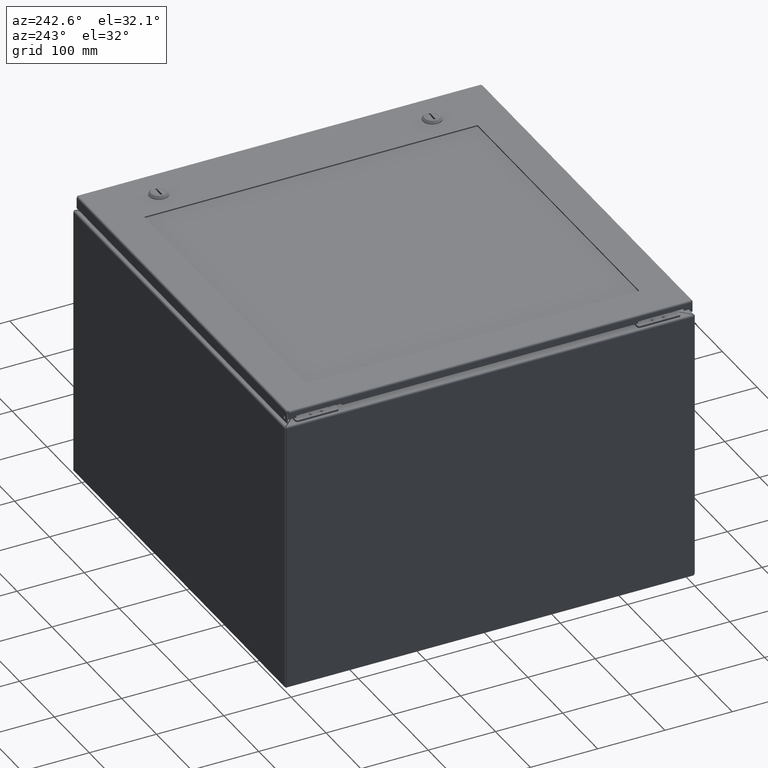
[diagram: clean part render]
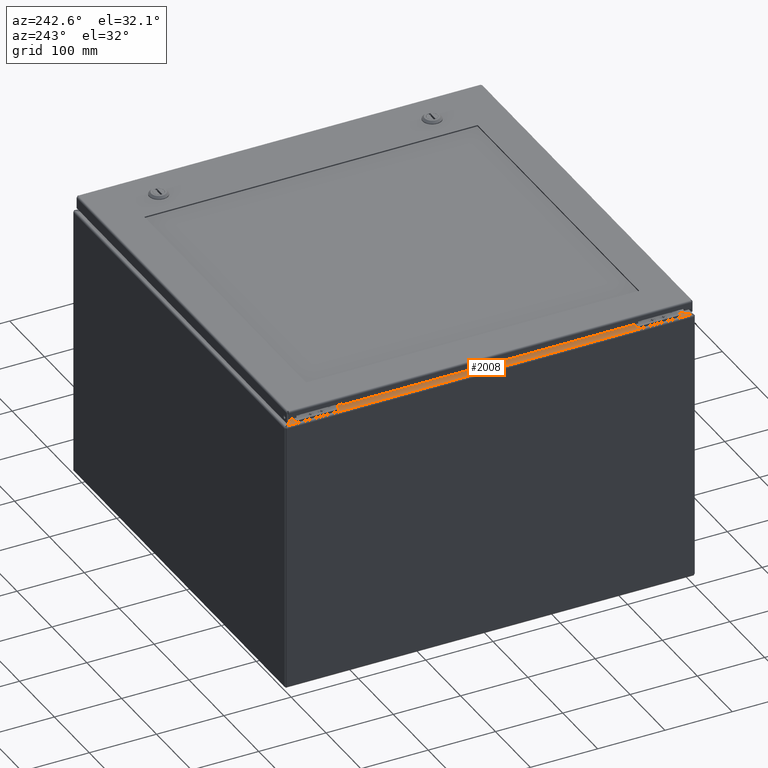
[diagram: same view with one face highlighted and labeled with its STEP entity id]
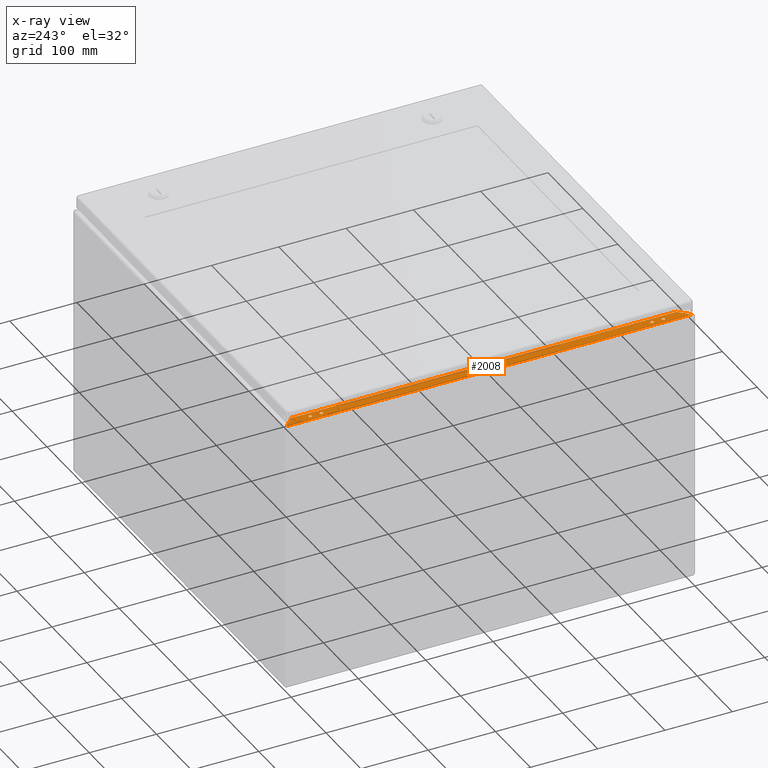
[diagram: x-ray of the same camera — body ghosted, the highlighted face saturated]
A machine part, auxiliary view. The second image highlights one B-rep face of the part: STEP entity #2008.
The next image is the same camera in x-ray: the body ghosted, the highlighted face saturated — about 0% of this face is hidden behind the body in this view.
In plain terms, the highlighted planar face has unit normal (0, -0, -1).
Its self-contained STEP definition (entity closure, byte-faithful):
#247=CARTESIAN_POINT('',(22.349999999999998,0.399999999999981,15.999999999999970));
#248=VERTEX_POINT('',#247);
#249=CARTESIAN_POINT('',(22.255999999999997,0.399999999999981,15.999999999999970));
#250=DIRECTION('',(0.0,0.0,-1.0));
#251=DIRECTION('',(-1.0,0.0,0.0));
#252=AXIS2_PLACEMENT_3D('',#249,#250,#251);
#253=CIRCLE('',#252,0.094000000000000);
#254=EDGE_CURVE('',#248,#248,#253,.T.);
#275=CARTESIAN_POINT('',(21.689999999999998,0.399999999999981,15.999999999999970));
#276=VERTEX_POINT('',#275);
#277=CARTESIAN_POINT('',(21.595999999999997,0.399999999999981,15.999999999999970));
#278=DIRECTION('',(0.0,0.0,-1.0));
#279=DIRECTION('',(-1.0,0.0,0.0));
#280=AXIS2_PLACEMENT_3D('',#277,#278,#279);
#281=CIRCLE('',#280,0.094000000000000);
#282=EDGE_CURVE('',#276,#276,#281,.T.);
#303=CARTESIAN_POINT('',(2.349999999999210,0.399999999999981,15.999999999999970));
#304=VERTEX_POINT('',#303);
#305=CARTESIAN_POINT('',(2.255999999999210,0.399999999999981,15.999999999999970));
#306=DIRECTION('',(0.0,0.0,-1.0));
#307=DIRECTION('',(-1.0,0.0,0.0));
#308=AXIS2_PLACEMENT_3D('',#305,#306,#307);
#309=CIRCLE('',#308,0.094000000000000);
#310=EDGE_CURVE('',#304,#304,#309,.T.);
#331=CARTESIAN_POINT('',(1.689999999999210,0.399999999999981,15.999999999999970));
#332=VERTEX_POINT('',#331);
#333=CARTESIAN_POINT('',(1.595999999999210,0.399999999999981,15.999999999999970));
#334=DIRECTION('',(0.0,0.0,-1.0));
#335=DIRECTION('',(-1.0,0.0,0.0));
#336=AXIS2_PLACEMENT_3D('',#333,#334,#335);
#337=CIRCLE('',#336,0.094000000000000);
#338=EDGE_CURVE('',#332,#332,#337,.T.);
#591=CARTESIAN_POINT('',(0.065093184459813,0.105249999999991,16.000000000000007));
#592=VERTEX_POINT('',#591);
#626=CARTESIAN_POINT('',(23.786906815539659,0.105249999999991,16.000000000000007));
#627=VERTEX_POINT('',#626);
#778=CARTESIAN_POINT('',(23.184906815539652,0.707249999999997,16.000000000000028));
#779=VERTEX_POINT('',#778);
#786=CARTESIAN_POINT('',(23.786906815539663,0.105249999999993,15.999999999999947));
#787=DIRECTION('',(-0.707106781186547,0.707106781186547,5.216254E-014));
#788=VECTOR('',#787,0.851356564548614);
#789=LINE('',#786,#788);
#790=EDGE_CURVE('',#627,#779,#789,.T.);
#802=CARTESIAN_POINT('',(0.667093184459807,0.707249999999997,16.000000000000028));
#803=VERTEX_POINT('',#802);
#804=CARTESIAN_POINT('',(0.667093184459808,0.707249999999998,15.999999999999989));
#805=DIRECTION('',(-0.707106781186540,-0.707106781186555,-5.216254E-014));
#806=VECTOR('',#805,0.851356564548604);
#807=LINE('',#804,#806);
#808=EDGE_CURVE('',#803,#592,#807,.T.);
#1971=CARTESIAN_POINT('',(23.184906815539652,0.707249999999997,16.000000000000028));
#1972=DIRECTION('',(-1.0,0.0,0.0));
#1973=VECTOR('',#1972,22.517813631079846);
#1974=LINE('',#1971,#1973);
#1975=EDGE_CURVE('',#779,#803,#1974,.T.);
#1980=CARTESIAN_POINT('',(11.925999999999995,-27.779465027225587,15.999999999997906));
#1981=DIRECTION('',(0.0,0.0,-1.0));
#1982=DIRECTION('',(1.0,0.0,0.0));
#1983=AXIS2_PLACEMENT_3D('',#1980,#1981,#1982);
#1984=PLANE('',#1983);
#1985=ORIENTED_EDGE('',*,*,#790,.T.);
#1986=ORIENTED_EDGE('',*,*,#1975,.T.);
#1987=ORIENTED_EDGE('',*,*,#808,.T.);
#1988=CARTESIAN_POINT('',(0.065093184459814,0.105249999999991,16.000000000000007));
#1989=DIRECTION('',(1.0,0.0,0.0));
#1990=VECTOR('',#1989,23.721813631079847);
#1991=LINE('',#1988,#1990);
#1992=EDGE_CURVE('',#592,#627,#1991,.T.);
#1993=ORIENTED_EDGE('',*,*,#1992,.T.);
#1994=EDGE_LOOP('',(#1985,#1986,#1987,#1993));
#1995=FACE_OUTER_BOUND('',#1994,.T.);
#1996=ORIENTED_EDGE('',*,*,#254,.T.);
#1997=EDGE_LOOP('',(#1996));
#1998=FACE_BOUND('',#1997,.T.);
#1999=ORIENTED_EDGE('',*,*,#282,.T.);
#2000=EDGE_LOOP('',(#1999));
#2001=FACE_BOUND('',#2000,.T.);
#2002=ORIENTED_EDGE('',*,*,#310,.T.);
#2003=EDGE_LOOP('',(#2002));
#2004=FACE_BOUND('',#2003,.T.);
#2005=ORIENTED_EDGE('',*,*,#338,.T.);
#2006=EDGE_LOOP('',(#2005));
#2007=FACE_BOUND('',#2006,.T.);
#2008=ADVANCED_FACE('',(#1995,#1998,#2001,#2004,#2007),#1984,.F.);